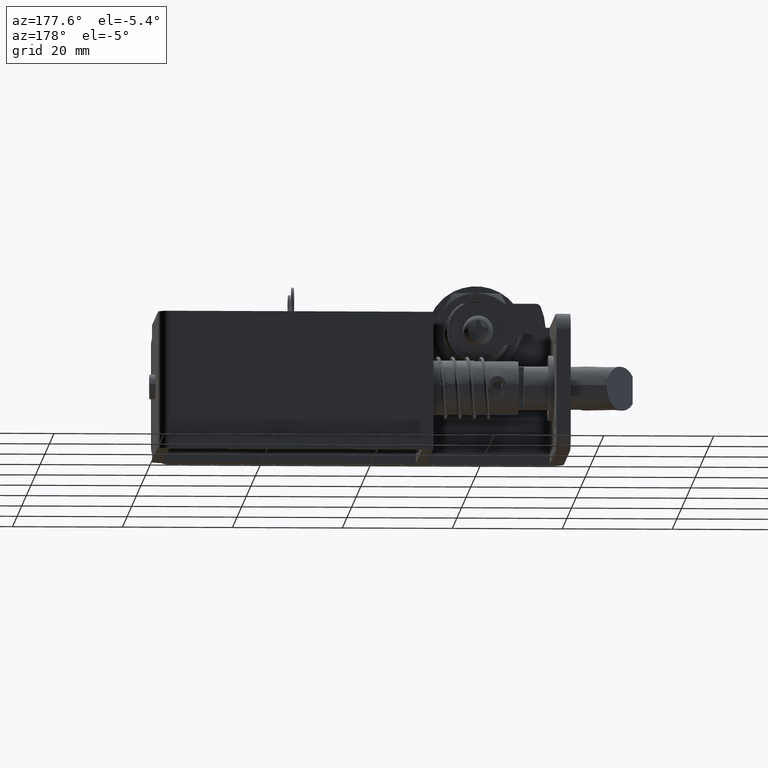
[diagram: clean part render]
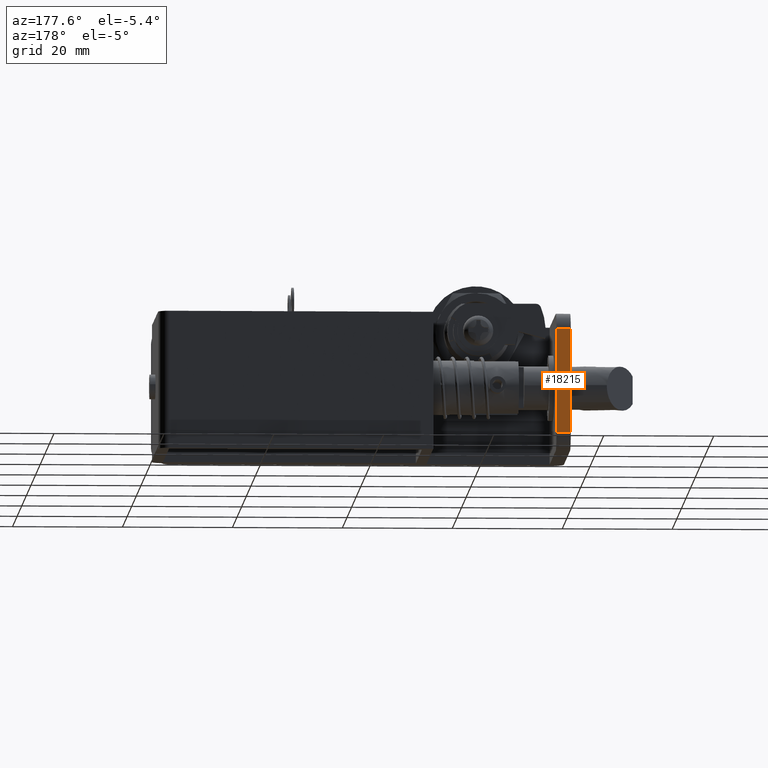
[diagram: same view with one face highlighted and labeled with its STEP entity id]
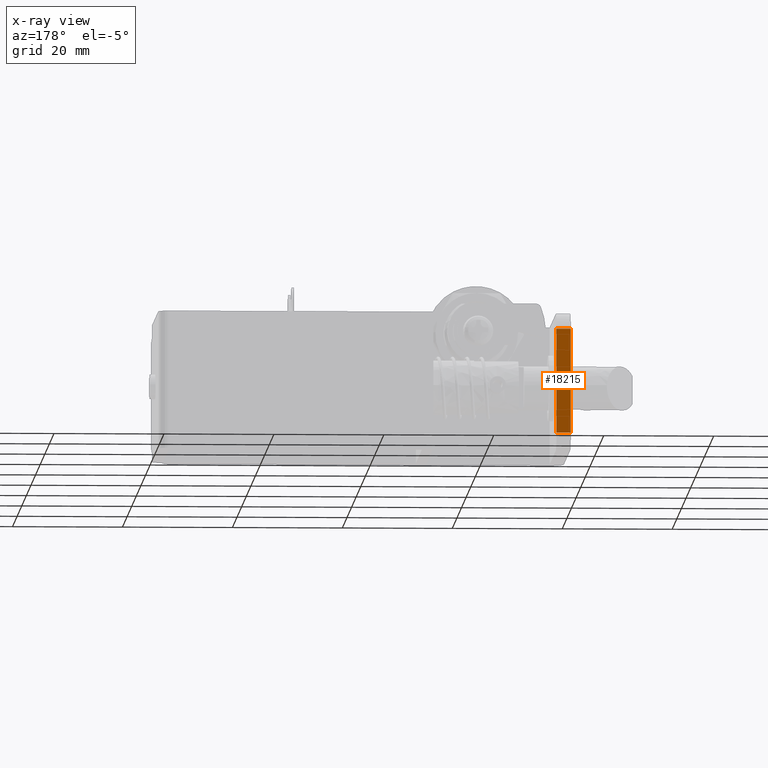
[diagram: x-ray of the same camera — body ghosted, the highlighted face saturated]
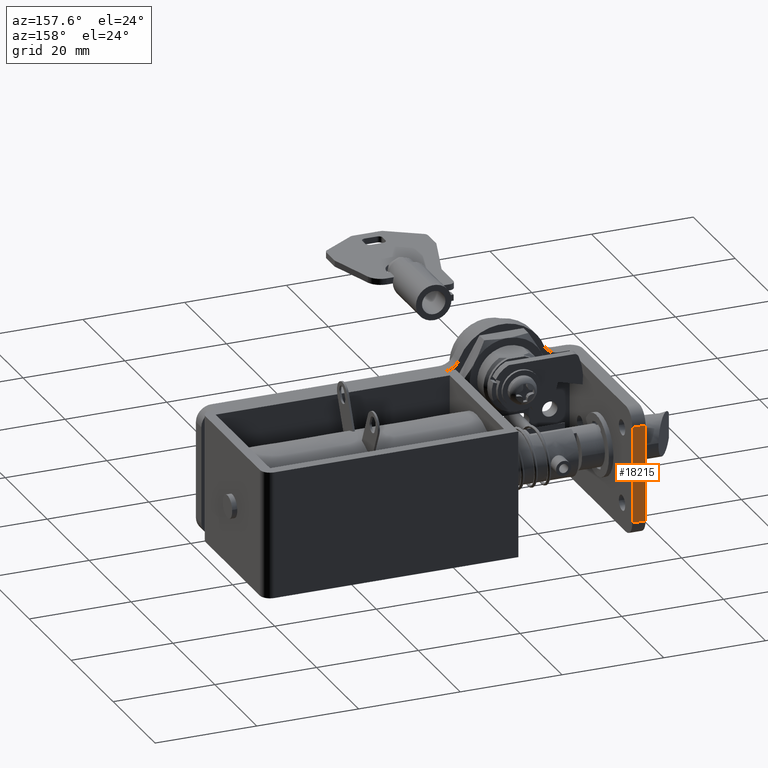
[diagram: same view with one face highlighted and labeled with its STEP entity id]
A machine part, auxiliary view. The second image highlights one B-rep face of the part: STEP entity #18215.
The next image is the same camera in x-ray: the body ghosted, the highlighted face saturated — about 0% of this face is hidden behind the body in this view.
A second angle (auxiliary view) of the same face is appended — the face is thin or edge-on in the first view.
In plain terms, the highlighted face is a freeform B-spline surface patch.
Its self-contained STEP definition (entity closure, byte-faithful):
#17479=CARTESIAN_POINT('',(-16.0,32.500000000000000,-1.500000000000000));
#17480=VERTEX_POINT('',#17479);
#17501=CARTESIAN_POINT('',(-13.400000000000000,32.500000000000000,-1.500000000000000));
#17502=VERTEX_POINT('',#17501);
#17516=CARTESIAN_POINT('',(-16.0,32.500000000000000,-1.500000000000000));
#17517=CARTESIAN_POINT('',(-13.400000000000000,32.500000000000000,-1.500000000000000));
#17518=QUASI_UNIFORM_CURVE('',1,(#17516,#17517),.UNSPECIFIED.,.F.,.U.);
#17519=EDGE_CURVE('',#17480,#17502,#17518,.T.);
#17540=CARTESIAN_POINT('',(-13.400000000000000,32.500000000000000,-20.500000000000000));
#17541=VERTEX_POINT('',#17540);
#17562=CARTESIAN_POINT('',(-16.0,32.500000000000000,-20.500000000000000));
#17563=VERTEX_POINT('',#17562);
#17577=CARTESIAN_POINT('',(-13.400000000000000,32.500000000000000,-20.500000000000000));
#17578=CARTESIAN_POINT('',(-16.0,32.500000000000000,-20.500000000000000));
#17579=QUASI_UNIFORM_CURVE('',1,(#17577,#17578),.UNSPECIFIED.,.F.,.U.);
#17580=EDGE_CURVE('',#17541,#17563,#17579,.T.);
#17768=CARTESIAN_POINT('',(-13.400000000000000,32.500000000000000,-20.500000000000000));
#17769=CARTESIAN_POINT('',(-13.400000000000000,32.500000000000000,-1.500000000000000));
#17770=QUASI_UNIFORM_CURVE('',1,(#17768,#17769),.UNSPECIFIED.,.F.,.U.);
#17771=EDGE_CURVE('',#17541,#17502,#17770,.T.);
#17830=CARTESIAN_POINT('',(-16.0,32.500000000000000,-20.500000000000000));
#17831=CARTESIAN_POINT('',(-16.0,32.500000000000000,-1.500000000000000));
#17832=QUASI_UNIFORM_CURVE('',1,(#17830,#17831),.UNSPECIFIED.,.F.,.U.);
#17833=EDGE_CURVE('',#17563,#17480,#17832,.T.);
#18204=CARTESIAN_POINT('',(-16.129870013538749,32.500000000000000,-0.550950036825686));
#18205=CARTESIAN_POINT('',(-13.270129544790830,32.500000000000000,-0.550950036825686));
#18206=CARTESIAN_POINT('',(-16.129870013538749,32.500000000000000,-21.449050472794031));
#18207=CARTESIAN_POINT('',(-13.270129544790830,32.500000000000000,-21.449050472794031));
#18208=B_SPLINE_SURFACE_WITH_KNOTS('',1,1,((#18204,#18206),(#18205,#18207)),.UNSPECIFIED.,.F.,.F.,.U.,(2,2),(2,2),(0.0,2.859740468747916),(0.0,20.898100435968349),.UNSPECIFIED.);
#18209=ORIENTED_EDGE('',*,*,#17771,.F.);
#18210=ORIENTED_EDGE('',*,*,#17580,.T.);
#18211=ORIENTED_EDGE('',*,*,#17833,.T.);
#18212=ORIENTED_EDGE('',*,*,#17519,.T.);
#18213=EDGE_LOOP('',(#18209,#18210,#18211,#18212));
#18214=FACE_OUTER_BOUND('',#18213,.T.);
#18215=ADVANCED_FACE('',(#18214),#18208,.T.);